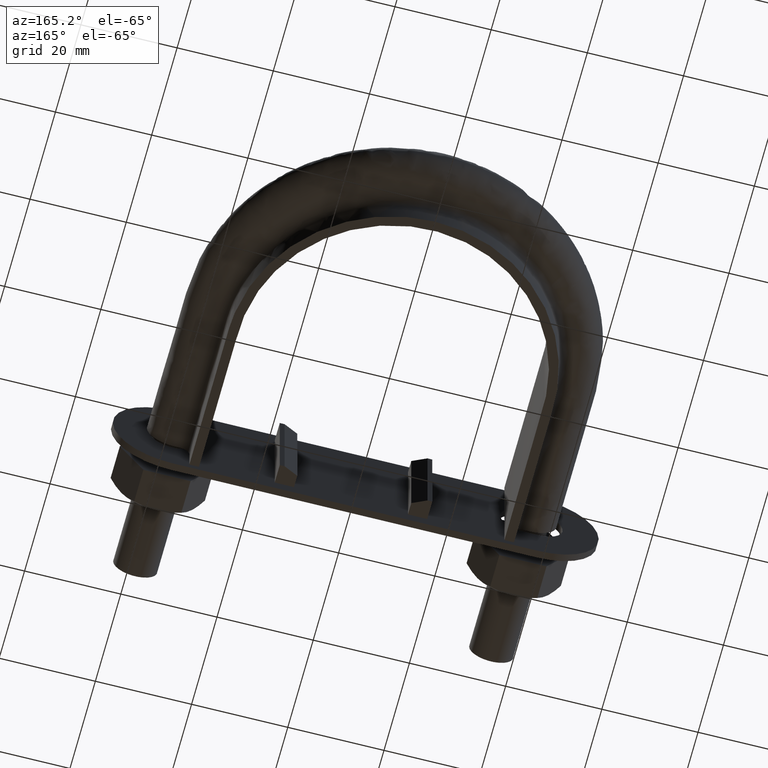
[diagram: clean part render]
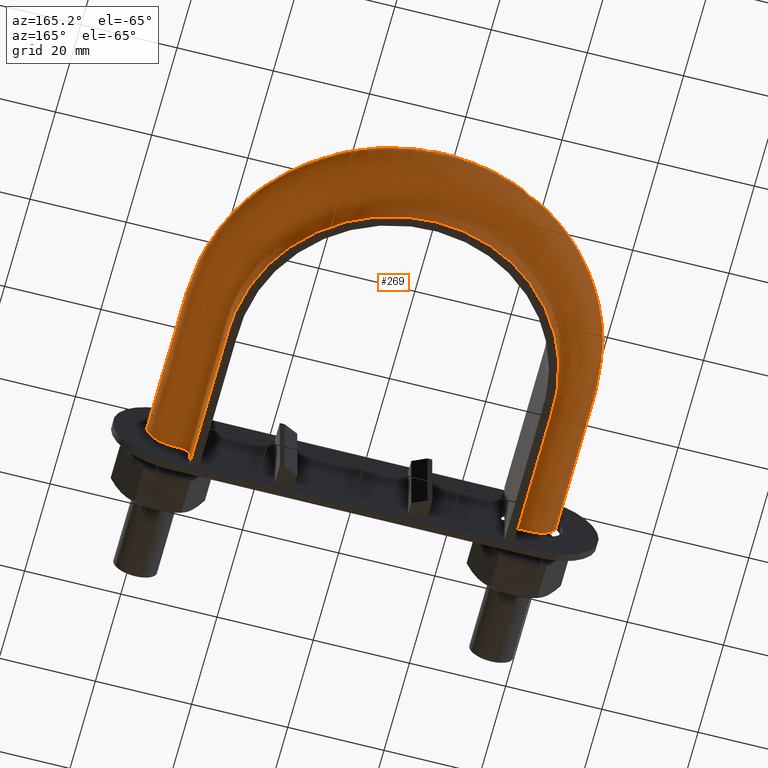
[diagram: same view with one face highlighted and labeled with its STEP entity id]
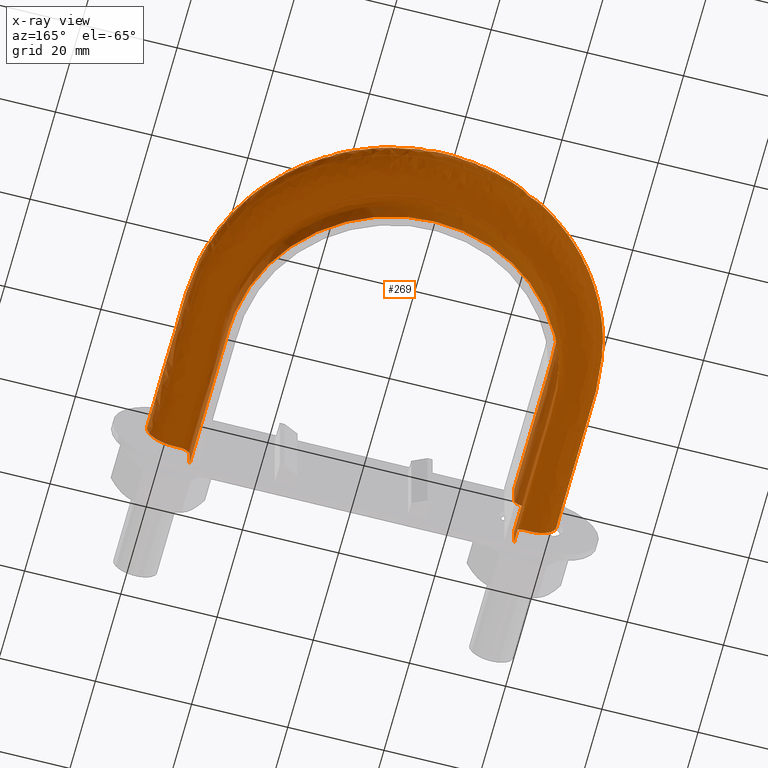
[diagram: x-ray of the same camera — body ghosted, the highlighted face saturated]
A machine part, auxiliary view. The second image highlights one B-rep face of the part: STEP entity #269.
The next image is the same camera in x-ray: the body ghosted, the highlighted face saturated — about 4% of this face is hidden behind the body in this view.
In plain terms, the highlighted face is a freeform B-spline surface patch.
Its self-contained STEP definition (entity closure, byte-faithful):
#269 = ADVANCED_FACE( '', ( #384 ), #385, .F. );
#384 = FACE_OUTER_BOUND( '', #636, .T. );
#385 = B_SPLINE_SURFACE_WITH_KNOTS( '', 3, 3, ( ( #637, #638, #639, #640, #641, #642, #643, #644, #645, #646, #647, #648, #649, #650, #651, #652, #653 ), ( #654, #655, #656, #657, #658, #659, #660, #661, #662, #663, #664, #665, #666, #667, #668, #669, #670 ), ( #671, #672, #673, #674, #675, #676, #677, #678, #679, #680, #681, #682, #683, #684, #685, #686, #687 ), ( #688, #689, #690, #691, #692, #693, #694, #695, #696, #697, #698, #699, #700, #701, #702, #703, #704 ), ( #705, #706, #707, #708, #709, #710, #711, #712, #713, #714, #715, #716, #717, #718, #719, #720, #721 ), ( #722, #723, #724, #725, #726, #727, #728, #729, #730, #731, #732, #733, #734, #735, #736, #737, #738 ), ( #739, #740, #741, #742, #743, #744, #745, #746, #747, #748, #749, #750, #751, #752, #753, #754, #755 ), ( #756, #757, #758, #759, #760, #761, #762, #763, #764, #765, #766, #767, #768, #769, #770, #771, #772 ), ( #773, #774, #775, #776, #777, #778, #779, #780, #781, #782, #783, #784, #785, #786, #787, #788, #789 ), ( #790, #791, #792, #793, #794, #795, #796, #797, #798, #799, #800, #801, #802, #803, #804, #805, #806 ), ( #807, #808, #809, #810, #811, #812, #813, #814, #815, #816, #817, #818, #819, #820, #821, #822, #823 ), ( #824, #825, #826, #827, #828, #829, #830, #831, #832, #833, #834, #835, #836, #837, #838, #839, #840 ), ( #841, #842, #843, #844, #845, #846, #847, #848, #849, #850, #851, #852, #853, #854, #855, #856, #857 ), ( #858, #859, #860, #861, #862, #863, #864, #865, #866, #867, #868, #869, #870, #871, #872, #873, #874 ), ( #875, #876, #877, #878, #879, #880, #881, #882, #883, #884, #885, #886, #887, #888, #889, #890, #891 ), ( #892, #893, #894, #895, #896, #897, #898, #899, #900, #901, #902, #903, #904, #905, #906, #907, #908 ), ( #909, #910, #911, #912, #913, #914, #915, #916, #917, #918, #919, #920, #921, #922, #923, #924, #925 ), ( #926, #927, #928, #929, #930, #931, #932, #933, #934, #935, #936, #937, #938, #939, #940, #941, #942 ), ( #943, #944, #945, #946, #947, #948, #949, #950, #951, #952, #953, #954, #955, #956, #957, #958, #959 ), ( #960, #961, #962, #963, #964, #965, #966, #967, #968, #969, #970, #971, #972, #973, #974, #975, #976 ), ( #977, #978, #979, #980, #981, #982, #983, #984, #985, #986, #987, #988, #989, #990, #991, #992, #993 ), ( #994, #995, #996, #997, #998, #999, #1000, #1001, #1002, #1003, #1004, #1005, #1006, #1007, #1008, #1009, #1010 ), ( #1011, #1012, #1013, #1014, #1015, #1016, #1017, #1018, #1019, #1020, #1021, #1022, #1023, #1024, #1025, #1026, #1027 ), ( #1028, #1029, #1030, #1031, #1032, #1033, #1034, #1035, #1036, #1037, #1038, #1039, #1040, #1041, #1042, #1043, #1044 ), ( #1045, #1046, #1047, #1048, #1049, #1050, #1051, #1052, #1053, #1054, #1055, #1056, #1057, #1058, #1059, #1060, #1061 ), ( #1062, #1063, #1064, #1065, #1066, #1067, #1068, #1069, #1070, #1071, #1072, #1073, #1074, #1075, #1076, #1077, #1078 ), ( #1079, #1080, #1081, #1082, #1083, #1084, #1085, #1086, #1087, #1088, #1089, #1090, #1091, #1092, #1093, #1094, #1095 ), ( #1096, #1097, #1098, #1099, #1100, #1101, #1102, #1103, #1104, #1105, #1106, #1107, #1108, #1109, #1110, #1111, #1112 ), ( #1113, #1114, #1115, #1116, #1117, #1118, #1119, #1120, #1121, #1122, #1123, #1124, #1125, #1126, #1127, #1128, #1129 ), ( #1130, #1131, #1132, #1133, #1134, #1135, #1136, #1137, #1138, #1139, #1140, #1141, #1142, #1143, #1144, #1145, #1146 ), ( #1147, #1148, #1149, #1150, #1151, #1152, #1153, #1154, #1155, #1156, #1157, #1158, #1159, #1160, #1161, #1162, #1163 ) ), .UNSPECIFIED., .F., .F., .F., ( 4, 3, 1, 1, 1, 3, 3, 1, 1, 1, 3, 3, 1, 1, 1, 3, 4 ), ( 4, 3, 1, 1, 1, 1, 1, 1, 1, 3, 4 ), ( 0.105263157894737, 0.157894736842105, 0.210526315789474, 0.263157894736842, 0.315789473684211, 0.368421052631579, 0.421052631578947, 0.473684210526316, 0.526315789473684, 0.578947368421053, 0.631578947368421, 0.684210526315789, 0.736842105263158, 0.789473684210526, 0.842105263157895, 0.894736842105263, 0.947368421052632 ), ( 0.000000000000000, 1.00000000000000, 1.50000000000000, 2.00000000000000, 3.00000000000000, 4.00000000000000, 5.00000000000000, 6.00000000000000, 6.50000000000000, 7.00000000000000, 8.00000000000000 ), .UNSPECIFIED. );
#636 = EDGE_LOOP( '', ( #1574, #1575, #1576, #1577 ) );
#637 = CARTESIAN_POINT( '', ( -33.7500000000000, 28.1500000000000, 12.5000000000000 ) );
#638 = CARTESIAN_POINT( '', ( -33.7500000000000, 39.1833333333334, 12.5000000000000 ) );
#639 = CARTESIAN_POINT( '', ( -33.7500000000000, 50.2166666666667, 12.5000000000000 ) );
#640 = CARTESIAN_POINT( '', ( -33.7500000000000, 61.2500000000000, 12.5000000000000 ) );
#641 = CARTESIAN_POINT( '', ( -33.7500000000000, 64.1871878666593, 12.5000000000000 ) );
#642 = CARTESIAN_POINT( '', ( -32.9599759745505, 70.0846679582192, 12.5000000000000 ) );
#643 = CARTESIAN_POINT( '', ( -28.4402068792077, 81.0673801551942, 12.5000000000000 ) );
#644 = CARTESIAN_POINT( '', ( -17.6636188802502, 91.8452388121563, 12.5000000000000 ) );
#645 = CARTESIAN_POINT( '', ( 2.91741621508519E-014, 96.5773805939218, 12.5000000000000 ) );
#646 = CARTESIAN_POINT( '', ( 17.6636188802502, 91.8452388121563, 12.5000000000000 ) );
#647 = CARTESIAN_POINT( '', ( 28.4402068792078, 81.0673801551942, 12.5000000000000 ) );
#648 = CARTESIAN_POINT( '', ( 32.9599759745505, 70.0846679582191, 12.5000000000000 ) );
#649 = CARTESIAN_POINT( '', ( 33.7500000000000, 64.1871878666593, 12.5000000000000 ) );
#650 = CARTESIAN_POINT( '', ( 33.7500000000000, 61.2500000000000, 12.5000000000000 ) );
#651 = CARTESIAN_POINT( '', ( 33.7500000000000, 50.2166666666666, 12.5000000000000 ) );
#652 = CARTESIAN_POINT( '', ( 33.7500000000000, 39.1833333333333, 12.5000000000000 ) );
#653 = CARTESIAN_POINT( '', ( 33.7500000000000, 28.1500000000000, 12.5000000000000 ) );
#654 = CARTESIAN_POINT( '', ( -33.7500000000000, 28.1500000000000, 10.8666666666667 ) );
#655 = CARTESIAN_POINT( '', ( -33.7500000000000, 39.1833333333333, 10.8666666666667 ) );
#656 = CARTESIAN_POINT( '', ( -33.7500000000000, 50.2166666666667, 10.8666666666667 ) );
#657 = CARTESIAN_POINT( '', ( -33.7500000000000, 61.2500000000000, 10.8666666666667 ) );
#658 = CARTESIAN_POINT( '', ( -33.7500000000000, 64.1871878666593, 10.8666666666667 ) );
#659 = CARTESIAN_POINT( '', ( -32.9599759745505, 70.0846679582192, 10.8666666666667 ) );
#660 = CARTESIAN_POINT( '', ( -28.4402068792077, 81.0673801551942, 10.8666666666667 ) );
#661 = CARTESIAN_POINT( '', ( -17.6636188802502, 91.8452388121563, 10.8666666666667 ) );
#662 = CARTESIAN_POINT( '', ( 2.48373534609099E-014, 96.5773805939218, 10.8666666666667 ) );
#663 = CARTESIAN_POINT( '', ( 17.6636188802502, 91.8452388121563, 10.8666666666667 ) );
#664 = CARTESIAN_POINT( '', ( 28.4402068792077, 81.0673801551942, 10.8666666666667 ) );
#665 = CARTESIAN_POINT( '', ( 32.9599759745505, 70.0846679582191, 10.8666666666667 ) );
#666 = CARTESIAN_POINT( '', ( 33.7500000000000, 64.1871878666593, 10.8666666666667 ) );
#667 = CARTESIAN_POINT( '', ( 33.7500000000000, 61.2500000000000, 10.8666666666667 ) );
#668 = CARTESIAN_POINT( '', ( 33.7500000000000, 50.2166666666666, 10.8666666666667 ) );
#669 = CARTESIAN_POINT( '', ( 33.7500000000000, 39.1833333333333, 10.8666666666667 ) );
#670 = CARTESIAN_POINT( '', ( 33.7500000000000, 28.1500000000000, 10.8666666666667 ) );
#671 = CARTESIAN_POINT( '', ( -33.7500000000000, 28.1500000000000, 9.23333333333332 ) );
#672 = CARTESIAN_POINT( '', ( -33.7500000000000, 39.1833333333333, 9.23333333333332 ) );
#673 = CARTESIAN_POINT( '', ( -33.7500000000000, 50.2166666666667, 9.23333333333332 ) );
#674 = CARTESIAN_POINT( '', ( -33.7500000000000, 61.2500000000000, 9.23333333333332 ) );
#675 = CARTESIAN_POINT( '', ( -33.7500000000000, 64.1871878666593, 9.23333333333332 ) );
#676 = CARTESIAN_POINT( '', ( -32.9599759745505, 70.0846679582192, 9.23333333333332 ) );
#677 = CARTESIAN_POINT( '', ( -28.4402068792077, 81.0673801551942, 9.23333333333333 ) );
#678 = CARTESIAN_POINT( '', ( -17.6636188802502, 91.8452388121563, 9.23333333333332 ) );
#679 = CARTESIAN_POINT( '', ( 2.05005447709679E-014, 96.5773805939219, 9.23333333333332 ) );
#680 = CARTESIAN_POINT( '', ( 17.6636188802502, 91.8452388121563, 9.23333333333332 ) );
#681 = CARTESIAN_POINT( '', ( 28.4402068792077, 81.0673801551942, 9.23333333333333 ) );
#682 = CARTESIAN_POINT( '', ( 32.9599759745505, 70.0846679582191, 9.23333333333332 ) );
#683 = CARTESIAN_POINT( '', ( 33.7500000000000, 64.1871878666593, 9.23333333333332 ) );
#684 = CARTESIAN_POINT( '', ( 33.7500000000000, 61.2500000000000, 9.23333333333332 ) );
#685 = CARTESIAN_POINT( '', ( 33.7500000000000, 50.2166666666666, 9.23333333333332 ) );
#686 = CARTESIAN_POINT( '', ( 33.7500000000000, 39.1833333333333, 9.23333333333332 ) );
#687 = CARTESIAN_POINT( '', ( 33.7500000000000, 28.1500000000000, 9.23333333333332 ) );
#688 = CARTESIAN_POINT( '', ( -33.7500000000000, 28.1500000000000, 7.59999999999998 ) );
#689 = CARTESIAN_POINT( '', ( -33.7500000000000, 39.1833333333333, 7.59999999999998 ) );
#690 = CARTESIAN_POINT( '', ( -33.7500000000000, 50.2166666666667, 7.59999999999998 ) );
#691 = CARTESIAN_POINT( '', ( -33.7500000000000, 61.2500000000000, 7.59999999999998 ) );
#692 = CARTESIAN_POINT( '', ( -33.7500000000000, 64.1871878666593, 7.59999999999998 ) );
#693 = CARTESIAN_POINT( '', ( -32.9599759745505, 70.0846679582191, 7.59999999999998 ) );
#694 = CARTESIAN_POINT( '', ( -28.4402068792077, 81.0673801551942, 7.59999999999999 ) );
#695 = CARTESIAN_POINT( '', ( -17.6636188802502, 91.8452388121563, 7.59999999999998 ) );
#696 = CARTESIAN_POINT( '', ( 1.87658212949911E-014, 96.5773805939218, 7.59999999999999 ) );
#697 = CARTESIAN_POINT( '', ( 17.6636188802502, 91.8452388121563, 7.59999999999998 ) );
#698 = CARTESIAN_POINT( '', ( 28.4402068792077, 81.0673801551942, 7.59999999999999 ) );
#699 = CARTESIAN_POINT( '', ( 32.9599759745505, 70.0846679582191, 7.59999999999998 ) );
#700 = CARTESIAN_POINT( '', ( 33.7500000000000, 64.1871878666593, 7.59999999999998 ) );
#701 = CARTESIAN_POINT( '', ( 33.7500000000000, 61.2500000000000, 7.59999999999998 ) );
#702 = CARTESIAN_POINT( '', ( 33.7500000000000, 50.2166666666666, 7.59999999999998 ) );
#703 = CARTESIAN_POINT( '', ( 33.7500000000000, 39.1833333333333, 7.59999999999998 ) );
#704 = CARTESIAN_POINT( '', ( 33.7500000000000, 28.1500000000000, 7.59999999999998 ) );
#705 = CARTESIAN_POINT( '', ( -33.7500000000000, 28.1500000000000, 7.33823584172332 ) );
#706 = CARTESIAN_POINT( '', ( -33.7500000000000, 39.1833333333333, 7.33823584172332 ) );
#707 = CARTESIAN_POINT( '', ( -33.7500000000000, 50.2166666666667, 7.33823584172332 ) );
#708 = CARTESIAN_POINT( '', ( -33.7500000000000, 61.2500000000000, 7.33823584172332 ) );
#709 = CARTESIAN_POINT( '', ( -33.7500000000000, 64.1871878666593, 7.33823584172332 ) );
#710 = CARTESIAN_POINT( '', ( -32.9599759745505, 70.0846679582191, 7.33823584172331 ) );
#711 = CARTESIAN_POINT( '', ( -28.4402068792077, 81.0673801551942, 7.33823584172332 ) );
#712 = CARTESIAN_POINT( '', ( -17.6636188802502, 91.8452388121563, 7.33823584172331 ) );
#713 = CARTESIAN_POINT( '', ( 1.96331830329795E-014, 96.5773805939218, 7.33823584172332 ) );
#714 = CARTESIAN_POINT( '', ( 17.6636188802502, 91.8452388121563, 7.33823584172331 ) );
#715 = CARTESIAN_POINT( '', ( 28.4402068792077, 81.0673801551942, 7.33823584172332 ) );
#716 = CARTESIAN_POINT( '', ( 32.9599759745505, 70.0846679582191, 7.33823584172331 ) );
#717 = CARTESIAN_POINT( '', ( 33.7500000000000, 64.1871878666593, 7.33823584172332 ) );
#718 = CARTESIAN_POINT( '', ( 33.7500000000000, 61.2500000000000, 7.33823584172332 ) );
#719 = CARTESIAN_POINT( '', ( 33.7500000000000, 50.2166666666666, 7.33823584172332 ) );
#720 = CARTESIAN_POINT( '', ( 33.7500000000000, 39.1833333333333, 7.33823584172332 ) );
#721 = CARTESIAN_POINT( '', ( 33.7500000000000, 28.1500000000000, 7.33823584172332 ) );
#722 = CARTESIAN_POINT( '', ( -33.8541362568359, 28.1500000000000, 6.81470752516999 ) );
#723 = CARTESIAN_POINT( '', ( -33.8541362568359, 39.1833333333333, 6.81470752516999 ) );
#724 = CARTESIAN_POINT( '', ( -33.8541362568359, 50.2166666666667, 6.81470752516999 ) );
#725 = CARTESIAN_POINT( '', ( -33.8541362568359, 61.2500000000000, 6.81470752516999 ) );
#726 = CARTESIAN_POINT( '', ( -33.8541362568359, 64.1964889419666, 6.81470752516999 ) );
#727 = CARTESIAN_POINT( '', ( -33.0617163629081, 70.1118308760230, 6.81470752516999 ) );
#728 = CARTESIAN_POINT( '', ( -28.5279356231946, 81.1285829879987, 6.81470752517000 ) );
#729 = CARTESIAN_POINT( '', ( -17.7181279007037, 91.9396206541654, 6.81470752516999 ) );
#730 = CARTESIAN_POINT( '', ( 1.87791711530883E-014, 96.6863940581712, 6.81470752516999 ) );
#731 = CARTESIAN_POINT( '', ( 17.7181279007038, 91.9396206541654, 6.81470752516999 ) );
#732 = CARTESIAN_POINT( '', ( 28.5279356231946, 81.1285829879987, 6.81470752517000 ) );
#733 = CARTESIAN_POINT( '', ( 33.0617163629082, 70.1118308760230, 6.81470752516999 ) );
#734 = CARTESIAN_POINT( '', ( 33.8541362568359, 64.1964889419666, 6.81470752516999 ) );
#735 = CARTESIAN_POINT( '', ( 33.8541362568359, 61.2500000000000, 6.81470752516999 ) );
#736 = CARTESIAN_POINT( '', ( 33.8541362568359, 50.2166666666666, 6.81470752516999 ) );
#737 = CARTESIAN_POINT( '', ( 33.8541362568359, 39.1833333333333, 6.81470752516999 ) );
#738 = CARTESIAN_POINT( '', ( 33.8541362568359, 28.1500000000000, 6.81470752516999 ) );
#739 = CARTESIAN_POINT( '', ( -34.2989687109389, 28.1500000000000, 6.14896871093886 ) );
#740 = CARTESIAN_POINT( '', ( -34.2989687109389, 39.1833333333333, 6.14896871093886 ) );
#741 = CARTESIAN_POINT( '', ( -34.2989687109389, 50.2166666666667, 6.14896871093886 ) );
#742 = CARTESIAN_POINT( '', ( -34.2989687109389, 61.2500000000000, 6.14896871093886 ) );
#743 = CARTESIAN_POINT( '', ( -34.2989687109389, 64.2362197742480, 6.14896871093886 ) );
#744 = CARTESIAN_POINT( '', ( -33.4963145327448, 70.2278610441357, 6.14896871093886 ) );
#745 = CARTESIAN_POINT( '', ( -28.9026811121221, 81.3900193708850, 6.14896871093886 ) );
#746 = CARTESIAN_POINT( '', ( -17.9509707363869, 92.3427857733981, 6.14896871093886 ) );
#747 = CARTESIAN_POINT( '', ( 1.88361969222078E-014, 97.1520601797093, 6.14896871093886 ) );
#748 = CARTESIAN_POINT( '', ( 17.9509707363869, 92.3427857733981, 6.14896871093885 ) );
#749 = CARTESIAN_POINT( '', ( 28.9026811121221, 81.3900193708850, 6.14896871093886 ) );
#750 = CARTESIAN_POINT( '', ( 33.4963145327449, 70.2278610441357, 6.14896871093885 ) );
#751 = CARTESIAN_POINT( '', ( 34.2989687109389, 64.2362197742480, 6.14896871093886 ) );
#752 = CARTESIAN_POINT( '', ( 34.2989687109389, 61.2500000000000, 6.14896871093886 ) );
#753 = CARTESIAN_POINT( '', ( 34.2989687109389, 50.2166666666666, 6.14896871093886 ) );
#754 = CARTESIAN_POINT( '', ( 34.2989687109389, 39.1833333333333, 6.14896871093886 ) );
#755 = CARTESIAN_POINT( '', ( 34.2989687109389, 28.1500000000000, 6.14896871093886 ) );
#756 = CARTESIAN_POINT( '', ( -34.9647075251700, 28.1500000000000, 5.70413625683589 ) );
#757 = CARTESIAN_POINT( '', ( -34.9647075251700, 39.1833333333333, 5.70413625683589 ) );
#758 = CARTESIAN_POINT( '', ( -34.9647075251700, 50.2166666666667, 5.70413625683589 ) );
#759 = CARTESIAN_POINT( '', ( -34.9647075251700, 61.2500000000000, 5.70413625683589 ) );
#760 = CARTESIAN_POINT( '', ( -34.9647075251700, 64.2956811667957, 5.70413625683589 ) );
#761 = CARTESIAN_POINT( '', ( -34.1467366581663, 70.4015124623762, 5.70413625683589 ) );
#762 = CARTESIAN_POINT( '', ( -29.4635273703839, 81.7812865680829, 5.70413625683589 ) );
#763 = CARTESIAN_POINT( '', ( -18.2994446660656, 92.9461650141474, 5.70413625683589 ) );
#764 = CARTESIAN_POINT( '', ( 1.97889037548810E-014, 97.8489787806813, 5.70413625683589 ) );
#765 = CARTESIAN_POINT( '', ( 18.2994446660656, 92.9461650141474, 5.70413625683589 ) );
#766 = CARTESIAN_POINT( '', ( 29.4635273703840, 81.7812865680829, 5.70413625683589 ) );
#767 = CARTESIAN_POINT( '', ( 34.1467366581663, 70.4015124623762, 5.70413625683589 ) );
#768 = CARTESIAN_POINT( '', ( 34.9647075251700, 64.2956811667957, 5.70413625683589 ) );
#769 = CARTESIAN_POINT( '', ( 34.9647075251700, 61.2500000000000, 5.70413625683589 ) );
#770 = CARTESIAN_POINT( '', ( 34.9647075251700, 50.2166666666666, 5.70413625683589 ) );
#771 = CARTESIAN_POINT( '', ( 34.9647075251700, 39.1833333333333, 5.70413625683589 ) );
#772 = CARTESIAN_POINT( '', ( 34.9647075251700, 28.1500000000000, 5.70413625683589 ) );
#773 = CARTESIAN_POINT( '', ( -35.4882358417234, 28.1500000000000, 5.59999999999998 ) );
#774 = CARTESIAN_POINT( '', ( -35.4882358417233, 39.1833333333333, 5.59999999999998 ) );
#775 = CARTESIAN_POINT( '', ( -35.4882358417233, 50.2166666666667, 5.59999999999998 ) );
#776 = CARTESIAN_POINT( '', ( -35.4882358417233, 61.2500000000000, 5.59999999999998 ) );
#777 = CARTESIAN_POINT( '', ( -35.4882358417233, 64.3424408300075, 5.59999999999998 ) );
#778 = CARTESIAN_POINT( '', ( -34.6582201305010, 70.5380696717730, 5.59999999999998 ) );
#779 = CARTESIAN_POINT( '', ( -29.9045695496238, 82.0889739864711, 5.59999999999999 ) );
#780 = CARTESIAN_POINT( '', ( -18.5734800172688, 93.4206545758196, 5.59999999999998 ) );
#781 = CARTESIAN_POINT( '', ( 2.24581032376724E-014, 98.3970264746752, 5.59999999999998 ) );
#782 = CARTESIAN_POINT( '', ( 18.5734800172688, 93.4206545758196, 5.59999999999998 ) );
#783 = CARTESIAN_POINT( '', ( 29.9045695496238, 82.0889739864711, 5.59999999999999 ) );
#784 = CARTESIAN_POINT( '', ( 34.6582201305010, 70.5380696717730, 5.59999999999998 ) );
#785 = CARTESIAN_POINT( '', ( 35.4882358417234, 64.3424408300075, 5.59999999999998 ) );
#786 = CARTESIAN_POINT( '', ( 35.4882358417234, 61.2500000000000, 5.59999999999998 ) );
#787 = CARTESIAN_POINT( '', ( 35.4882358417234, 50.2166666666666, 5.59999999999998 ) );
#788 = CARTESIAN_POINT( '', ( 35.4882358417234, 39.1833333333333, 5.59999999999998 ) );
#789 = CARTESIAN_POINT( '', ( 35.4882358417234, 28.1500000000000, 5.59999999999998 ) );
#790 = CARTESIAN_POINT( '', ( -35.7500000000000, 28.1500000000000, 5.59999999999998 ) );
#791 = CARTESIAN_POINT( '', ( -35.7500000000000, 39.1833333333333, 5.59999999999998 ) );
#792 = CARTESIAN_POINT( '', ( -35.7500000000000, 50.2166666666667, 5.59999999999998 ) );
#793 = CARTESIAN_POINT( '', ( -35.7500000000000, 61.2500000000000, 5.59999999999998 ) );
#794 = CARTESIAN_POINT( '', ( -35.7500000000000, 64.3658206616134, 5.59999999999998 ) );
#795 = CARTESIAN_POINT( '', ( -34.9139618666683, 70.6063482764714, 5.59999999999998 ) );
#796 = CARTESIAN_POINT( '', ( -30.1250906392437, 82.2428176956652, 5.59999999999999 ) );
#797 = CARTESIAN_POINT( '', ( -18.7104976928704, 93.6578993566557, 5.59999999999998 ) );
#798 = CARTESIAN_POINT( '', ( 1.98895751581204E-014, 98.6710503216721, 5.59999999999998 ) );
#799 = CARTESIAN_POINT( '', ( 18.7104976928704, 93.6578993566557, 5.59999999999998 ) );
#800 = CARTESIAN_POINT( '', ( 30.1250906392437, 82.2428176956652, 5.59999999999999 ) );
#801 = CARTESIAN_POINT( '', ( 34.9139618666683, 70.6063482764714, 5.59999999999998 ) );
#802 = CARTESIAN_POINT( '', ( 35.7500000000000, 64.3658206616134, 5.59999999999998 ) );
#803 = CARTESIAN_POINT( '', ( 35.7500000000000, 61.2500000000000, 5.59999999999998 ) );
#804 = CARTESIAN_POINT( '', ( 35.7500000000000, 50.2166666666666, 5.59999999999998 ) );
#805 = CARTESIAN_POINT( '', ( 35.7500000000000, 39.1833333333333, 5.59999999999998 ) );
#806 = CARTESIAN_POINT( '', ( 35.7500000000000, 28.1500000000000, 5.59999999999998 ) );
#807 = CARTESIAN_POINT( '', ( -36.1666666666667, 28.1500000000000, 5.60000000000000 ) );
#808 = CARTESIAN_POINT( '', ( -36.1666666666667, 39.1833333333333, 5.60000000000000 ) );
#809 = CARTESIAN_POINT( '', ( -36.1666666666667, 50.2166666666667, 5.60000000000000 ) );
#810 = CARTESIAN_POINT( '', ( -36.1666666666667, 61.2500000000000, 5.60000000000000 ) );
#811 = CARTESIAN_POINT( '', ( -36.1666666666667, 64.4030358272288, 5.60000000000000 ) );
#812 = CARTESIAN_POINT( '', ( -35.3210422608595, 70.7150316761073, 5.60000000000000 ) );
#813 = CARTESIAN_POINT( '', ( -30.4761080892512, 82.4877005165967, 5.60000000000000 ) );
#814 = CARTESIAN_POINT( '', ( -18.9285974454996, 94.0355369700931, 5.60000000000000 ) );
#815 = CARTESIAN_POINT( '', ( 2.08103519221798E-014, 99.1072315149534, 5.60000000000000 ) );
#816 = CARTESIAN_POINT( '', ( 18.9285974454996, 94.0355369700931, 5.60000000000000 ) );
#817 = CARTESIAN_POINT( '', ( 30.4761080892512, 82.4877005165967, 5.60000000000000 ) );
#818 = CARTESIAN_POINT( '', ( 35.3210422608596, 70.7150316761073, 5.59999999999999 ) );
#819 = CARTESIAN_POINT( '', ( 36.1666666666667, 64.4030358272288, 5.60000000000000 ) );
#820 = CARTESIAN_POINT( '', ( 36.1666666666667, 61.2500000000000, 5.60000000000000 ) );
#821 = CARTESIAN_POINT( '', ( 36.1666666666667, 50.2166666666666, 5.60000000000000 ) );
#822 = CARTESIAN_POINT( '', ( 36.1666666666667, 39.1833333333333, 5.60000000000000 ) );
#823 = CARTESIAN_POINT( '', ( 36.1666666666667, 28.1500000000000, 5.60000000000000 ) );
#824 = CARTESIAN_POINT( '', ( -36.5833333333333, 28.1500000000000, 5.60000000000000 ) );
#825 = CARTESIAN_POINT( '', ( -36.5833333333333, 39.1833333333333, 5.60000000000000 ) );
#826 = CARTESIAN_POINT( '', ( -36.5833333333333, 50.2166666666667, 5.60000000000000 ) );
#827 = CARTESIAN_POINT( '', ( -36.5833333333333, 61.2500000000000, 5.60000000000000 ) );
#828 = CARTESIAN_POINT( '', ( -36.5833333333333, 64.4402509928442, 5.60000000000000 ) );
#829 = CARTESIAN_POINT( '', ( -35.7281226550507, 70.8237150757431, 5.60000000000000 ) );
#830 = CARTESIAN_POINT( '', ( -30.8271255392587, 82.7325833375282, 5.60000000000000 ) );
#831 = CARTESIAN_POINT( '', ( -19.1466971981288, 94.4131745835304, 5.60000000000000 ) );
#832 = CARTESIAN_POINT( '', ( 1.99964052102624E-014, 99.5434127082348, 5.60000000000000 ) );
#833 = CARTESIAN_POINT( '', ( 19.1466971981289, 94.4131745835304, 5.60000000000000 ) );
#834 = CARTESIAN_POINT( '', ( 30.8271255392587, 82.7325833375282, 5.60000000000000 ) );
#835 = CARTESIAN_POINT( '', ( 35.7281226550508, 70.8237150757431, 5.59999999999999 ) );
#836 = CARTESIAN_POINT( '', ( 36.5833333333334, 64.4402509928442, 5.60000000000000 ) );
#837 = CARTESIAN_POINT( '', ( 36.5833333333334, 61.2500000000000, 5.60000000000000 ) );
#838 = CARTESIAN_POINT( '', ( 36.5833333333334, 50.2166666666666, 5.60000000000000 ) );
#839 = CARTESIAN_POINT( '', ( 36.5833333333334, 39.1833333333333, 5.60000000000000 ) );
#840 = CARTESIAN_POINT( '', ( 36.5833333333333, 28.1500000000000, 5.60000000000000 ) );
#841 = CARTESIAN_POINT( '', ( -37.0000000000000, 28.1500000000000, 5.60000000000000 ) );
#842 = CARTESIAN_POINT( '', ( -37.0000000000000, 39.1833333333333, 5.60000000000000 ) );
#843 = CARTESIAN_POINT( '', ( -37.0000000000000, 50.2166666666667, 5.60000000000000 ) );
#844 = CARTESIAN_POINT( '', ( -37.0000000000000, 61.2500000000000, 5.60000000000000 ) );
#845 = CARTESIAN_POINT( '', ( -37.0000000000000, 64.4774661584597, 5.60000000000000 ) );
#846 = CARTESIAN_POINT( '', ( -36.1352030492419, 70.9323984753790, 5.60000000000000 ) );
#847 = CARTESIAN_POINT( '', ( -31.1781429892662, 82.9774661584596, 5.60000000000000 ) );
#848 = CARTESIAN_POINT( '', ( -19.3647969507580, 94.7908121969678, 5.60000000000000 ) );
#849 = CARTESIAN_POINT( '', ( 1.74477350223682E-014, 99.9795939015161, 5.60000000000000 ) );
#850 = CARTESIAN_POINT( '', ( 19.3647969507581, 94.7908121969678, 5.60000000000000 ) );
#851 = CARTESIAN_POINT( '', ( 31.1781429892662, 82.9774661584596, 5.60000000000000 ) );
#852 = CARTESIAN_POINT( '', ( 36.1352030492420, 70.9323984753790, 5.59999999999999 ) );
#853 = CARTESIAN_POINT( '', ( 37.0000000000000, 64.4774661584597, 5.60000000000000 ) );
#854 = CARTESIAN_POINT( '', ( 37.0000000000000, 61.2500000000000, 5.60000000000000 ) );
#855 = CARTESIAN_POINT( '', ( 37.0000000000000, 50.2166666666666, 5.60000000000000 ) );
#856 = CARTESIAN_POINT( '', ( 37.0000000000000, 39.1833333333333, 5.60000000000000 ) );
#857 = CARTESIAN_POINT( '', ( 37.0000000000000, 28.1500000000000, 5.60000000000000 ) );
#858 = CARTESIAN_POINT( '', ( -38.4627416997970, 28.1500000000000, 5.60000000000000 ) );
#859 = CARTESIAN_POINT( '', ( -38.4627416997969, 39.1833333333333, 5.60000000000000 ) );
#860 = CARTESIAN_POINT( '', ( -38.4627416997969, 50.2166666666667, 5.60000000000000 ) );
#861 = CARTESIAN_POINT( '', ( -38.4627416997969, 61.2500000000000, 5.60000000000000 ) );
#862 = CARTESIAN_POINT( '', ( -38.4627416997969, 64.6081129775250, 5.60000000000000 ) );
#863 = CARTESIAN_POINT( '', ( -37.5642913718498, 71.3139402531145, 5.59999999999999 ) );
#864 = CARTESIAN_POINT( '', ( -32.4104178568238, 83.8371469114365, 5.60000000000000 ) );
#865 = CARTESIAN_POINT( '', ( -20.1304535976848, 96.1165392799758, 5.59999999999999 ) );
#866 = CARTESIAN_POINT( '', ( 1.85026144868281E-014, 101.510842909708, 5.60000000000000 ) );
#867 = CARTESIAN_POINT( '', ( 20.1304535976848, 96.1165392799757, 5.59999999999999 ) );
#868 = CARTESIAN_POINT( '', ( 32.4104178568238, 83.8371469114365, 5.60000000000000 ) );
#869 = CARTESIAN_POINT( '', ( 37.5642913718498, 71.3139402531144, 5.59999999999999 ) );
#870 = CARTESIAN_POINT( '', ( 38.4627416997970, 64.6081129775250, 5.60000000000000 ) );
#871 = CARTESIAN_POINT( '', ( 38.4627416997970, 61.2500000000000, 5.60000000000000 ) );
#872 = CARTESIAN_POINT( '', ( 38.4627416997970, 50.2166666666666, 5.60000000000000 ) );
#873 = CARTESIAN_POINT( '', ( 38.4627416997970, 39.1833333333333, 5.60000000000000 ) );
#874 = CARTESIAN_POINT( '', ( 38.4627416997970, 28.1500000000000, 5.60000000000000 ) );
#875 = CARTESIAN_POINT( '', ( -41.3882250993909, 28.1500000000000, 4.38822509939085 ) );
#876 = CARTESIAN_POINT( '', ( -41.3882250993908, 39.1833333333333, 4.38822509939085 ) );
#877 = CARTESIAN_POINT( '', ( -41.3882250993908, 50.2166666666667, 4.38822509939085 ) );
#878 = CARTESIAN_POINT( '', ( -41.3882250993908, 61.2500000000000, 4.38822509939085 ) );
#879 = CARTESIAN_POINT( '', ( -41.3882250993908, 64.8694066156556, 4.38822509939085 ) );
#880 = CARTESIAN_POINT( '', ( -40.4224680170654, 72.0770238085853, 4.38822509939085 ) );
#881 = CARTESIAN_POINT( '', ( -34.8749675919391, 85.5565084173903, 4.38822509939085 ) );
#882 = CARTESIAN_POINT( '', ( -21.6617668915383, 98.7679934459917, 4.38822509939085 ) );
#883 = CARTESIAN_POINT( '', ( 1.88776499397712E-014, 104.573340926090, 4.38822509939085 ) );
#884 = CARTESIAN_POINT( '', ( 21.6617668915383, 98.7679934459917, 4.38822509939085 ) );
#885 = CARTESIAN_POINT( '', ( 34.8749675919392, 85.5565084173903, 4.38822509939085 ) );
#886 = CARTESIAN_POINT( '', ( 40.4224680170655, 72.0770238085853, 4.38822509939085 ) );
#887 = CARTESIAN_POINT( '', ( 41.3882250993909, 64.8694066156556, 4.38822509939085 ) );
#888 = CARTESIAN_POINT( '', ( 41.3882250993909, 61.2500000000000, 4.38822509939085 ) );
#889 = CARTESIAN_POINT( '', ( 41.3882250993909, 50.2166666666666, 4.38822509939085 ) );
#890 = CARTESIAN_POINT( '', ( 41.3882250993909, 39.1833333333333, 4.38822509939085 ) );
#891 = CARTESIAN_POINT( '', ( 41.3882250993909, 28.1500000000000, 4.38822509939085 ) );
#892 = CARTESIAN_POINT( '', ( -43.2058874503046, 28.1500000000000, -1.07693261045861E-015 ) );
#893 = CARTESIAN_POINT( '', ( -43.2058874503046, 39.1833333333333, -1.07693261045861E-015 ) );
#894 = CARTESIAN_POINT( '', ( -43.2058874503046, 50.2166666666667, -1.07693261045861E-015 ) );
#895 = CARTESIAN_POINT( '', ( -43.2058874503046, 61.2500000000000, -1.07693261045861E-015 ) );
#896 = CARTESIAN_POINT( '', ( -43.2058874503046, 65.0317536686688, -1.07693261045861E-015 ) );
#897 = CARTESIAN_POINT( '', ( -42.1983113122250, 72.5511431454352, -1.07693261045861E-015 ) );
#898 = CARTESIAN_POINT( '', ( -36.4062424800808, 86.6247826989728, -1.07693261045861E-015 ) );
#899 = CARTESIAN_POINT( '', ( -22.6132029933728, 100.415395859353, -1.07693261045861E-015 ) );
#900 = CARTESIAN_POINT( '', ( 2.08453905722177E-014, 106.476133245780, -1.07693261045861E-015 ) );
#901 = CARTESIAN_POINT( '', ( 22.6132029933728, 100.415395859353, -1.07693261045861E-015 ) );
#902 = CARTESIAN_POINT( '', ( 36.4062424800808, 86.6247826989727, -1.07693261045861E-015 ) );
#903 = CARTESIAN_POINT( '', ( 42.1983113122250, 72.5511431454352, -1.07693261045861E-015 ) );
#904 = CARTESIAN_POINT( '', ( 43.2058874503046, 65.0317536686688, -1.07693261045861E-015 ) );
#905 = CARTESIAN_POINT( '', ( 43.2058874503046, 61.2500000000000, -1.07693261045861E-015 ) );
#906 = CARTESIAN_POINT( '', ( 43.2058874503046, 50.2166666666666, -1.07693261045861E-015 ) );
#907 = CARTESIAN_POINT( '', ( 43.2058874503046, 39.1833333333333, -1.07693261045861E-015 ) );
#908 = CARTESIAN_POINT( '', ( 43.2058874503046, 28.1500000000000, -1.07693261045861E-015 ) );
#909 = CARTESIAN_POINT( '', ( -41.3882250993909, 28.1500000000000, -4.38822509939086 ) );
#910 = CARTESIAN_POINT( '', ( -41.3882250993908, 39.1833333333333, -4.38822509939086 ) );
#911 = CARTESIAN_POINT( '', ( -41.3882250993908, 50.2166666666667, -4.38822509939086 ) );
#912 = CARTESIAN_POINT( '', ( -41.3882250993908, 61.2500000000000, -4.38822509939086 ) );
#913 = CARTESIAN_POINT( '', ( -41.3882250993908, 64.8694066156556, -4.38822509939086 ) );
#914 = CARTESIAN_POINT( '', ( -40.4224680170654, 72.0770238085853, -4.38822509939086 ) );
#915 = CARTESIAN_POINT( '', ( -34.8749675919391, 85.5565084173903, -4.38822509939086 ) );
#916 = CARTESIAN_POINT( '', ( -21.6617668915383, 98.7679934459917, -4.38822509939086 ) );
#917 = CARTESIAN_POINT( '', ( 1.88776499397712E-014, 104.573340926090, -4.38822509939086 ) );
#918 = CARTESIAN_POINT( '', ( 21.6617668915383, 98.7679934459917, -4.38822509939086 ) );
#919 = CARTESIAN_POINT( '', ( 34.8749675919392, 85.5565084173903, -4.38822509939086 ) );
#920 = CARTESIAN_POINT( '', ( 40.4224680170655, 72.0770238085853, -4.38822509939086 ) );
#921 = CARTESIAN_POINT( '', ( 41.3882250993909, 64.8694066156556, -4.38822509939086 ) );
#922 = CARTESIAN_POINT( '', ( 41.3882250993909, 61.2500000000000, -4.38822509939086 ) );
#923 = CARTESIAN_POINT( '', ( 41.3882250993909, 50.2166666666666, -4.38822509939086 ) );
#924 = CARTESIAN_POINT( '', ( 41.3882250993909, 39.1833333333333, -4.38822509939086 ) );
#925 = CARTESIAN_POINT( '', ( 41.3882250993909, 28.1500000000000, -4.38822509939086 ) );
#926 = CARTESIAN_POINT( '', ( -38.4627416997970, 28.1500000000000, -5.60000000000000 ) );
#927 = CARTESIAN_POINT( '', ( -38.4627416997969, 39.1833333333333, -5.60000000000000 ) );
#928 = CARTESIAN_POINT( '', ( -38.4627416997969, 50.2166666666667, -5.60000000000000 ) );
#929 = CARTESIAN_POINT( '', ( -38.4627416997969, 61.2500000000000, -5.60000000000000 ) );
#930 = CARTESIAN_POINT( '', ( -38.4627416997969, 64.6081129775250, -5.60000000000000 ) );
#931 = CARTESIAN_POINT( '', ( -37.5642913718498, 71.3139402531145, -5.60000000000000 ) );
#932 = CARTESIAN_POINT( '', ( -32.4104178568238, 83.8371469114365, -5.60000000000001 ) );
#933 = CARTESIAN_POINT( '', ( -20.1304535976848, 96.1165392799758, -5.60000000000000 ) );
#934 = CARTESIAN_POINT( '', ( 1.85026144868281E-014, 101.510842909708, -5.60000000000000 ) );
#935 = CARTESIAN_POINT( '', ( 20.1304535976848, 96.1165392799757, -5.60000000000000 ) );
#936 = CARTESIAN_POINT( '', ( 32.4104178568238, 83.8371469114365, -5.60000000000001 ) );
#937 = CARTESIAN_POINT( '', ( 37.5642913718498, 71.3139402531144, -5.60000000000000 ) );
#938 = CARTESIAN_POINT( '', ( 38.4627416997970, 64.6081129775250, -5.60000000000000 ) );
#939 = CARTESIAN_POINT( '', ( 38.4627416997970, 61.2500000000000, -5.60000000000000 ) );
#940 = CARTESIAN_POINT( '', ( 38.4627416997970, 50.2166666666666, -5.60000000000000 ) );
#941 = CARTESIAN_POINT( '', ( 38.4627416997970, 39.1833333333333, -5.60000000000000 ) );
#942 = CARTESIAN_POINT( '', ( 38.4627416997970, 28.1500000000000, -5.60000000000000 ) );
#943 = CARTESIAN_POINT( '', ( -37.0000000000000, 28.1500000000000, -5.60000000000000 ) );
#944 = CARTESIAN_POINT( '', ( -37.0000000000000, 39.1833333333333, -5.60000000000000 ) );
#945 = CARTESIAN_POINT( '', ( -37.0000000000000, 50.2166666666667, -5.60000000000000 ) );
#946 = CARTESIAN_POINT( '', ( -37.0000000000000, 61.2500000000000, -5.60000000000000 ) );
#947 = CARTESIAN_POINT( '', ( -37.0000000000000, 64.4774661584597, -5.60000000000000 ) );
#948 = CARTESIAN_POINT( '', ( -36.1352030492419, 70.9323984753790, -5.60000000000000 ) );
#949 = CARTESIAN_POINT( '', ( -31.1781429892662, 82.9774661584596, -5.60000000000001 ) );
#950 = CARTESIAN_POINT( '', ( -19.3647969507580, 94.7908121969678, -5.60000000000000 ) );
#951 = CARTESIAN_POINT( '', ( 2.00498202363334E-014, 99.9795939015161, -5.60000000000000 ) );
#952 = CARTESIAN_POINT( '', ( 19.3647969507581, 94.7908121969678, -5.60000000000000 ) );
#953 = CARTESIAN_POINT( '', ( 31.1781429892662, 82.9774661584596, -5.60000000000001 ) );
#954 = CARTESIAN_POINT( '', ( 36.1352030492420, 70.9323984753790, -5.60000000000000 ) );
#955 = CARTESIAN_POINT( '', ( 37.0000000000000, 64.4774661584597, -5.60000000000000 ) );
#956 = CARTESIAN_POINT( '', ( 37.0000000000000, 61.2500000000000, -5.60000000000000 ) );
#957 = CARTESIAN_POINT( '', ( 37.0000000000000, 50.2166666666666, -5.60000000000000 ) );
#958 = CARTESIAN_POINT( '', ( 37.0000000000000, 39.1833333333333, -5.60000000000000 ) );
#959 = CARTESIAN_POINT( '', ( 37.0000000000000, 28.1500000000000, -5.60000000000000 ) );
#960 = CARTESIAN_POINT( '', ( -36.5833333333334, 28.1500000000000, -5.60000000000000 ) );
#961 = CARTESIAN_POINT( '', ( -36.5833333333333, 39.1833333333333, -5.60000000000000 ) );
#962 = CARTESIAN_POINT( '', ( -36.5833333333333, 50.2166666666667, -5.60000000000000 ) );
#963 = CARTESIAN_POINT( '', ( -36.5833333333333, 61.2500000000000, -5.60000000000000 ) );
#964 = CARTESIAN_POINT( '', ( -36.5833333333333, 64.4402509928442, -5.60000000000000 ) );
#965 = CARTESIAN_POINT( '', ( -35.7281226550507, 70.8237150757431, -5.60000000000000 ) );
#966 = CARTESIAN_POINT( '', ( -30.8271255392587, 82.7325833375282, -5.60000000000001 ) );
#967 = CARTESIAN_POINT( '', ( -19.1466971981288, 94.4131745835304, -5.60000000000000 ) );
#968 = CARTESIAN_POINT( '', ( 1.99964052102624E-014, 99.5434127082348, -5.60000000000000 ) );
#969 = CARTESIAN_POINT( '', ( 19.1466971981289, 94.4131745835304, -5.60000000000000 ) );
#970 = CARTESIAN_POINT( '', ( 30.8271255392587, 82.7325833375282, -5.60000000000001 ) );
#971 = CARTESIAN_POINT( '', ( 35.7281226550508, 70.8237150757432, -5.60000000000000 ) );
#972 = CARTESIAN_POINT( '', ( 36.5833333333334, 64.4402509928442, -5.60000000000000 ) );
#973 = CARTESIAN_POINT( '', ( 36.5833333333334, 61.2500000000000, -5.60000000000000 ) );
#974 = CARTESIAN_POINT( '', ( 36.5833333333334, 50.2166666666666, -5.60000000000000 ) );
#975 = CARTESIAN_POINT( '', ( 36.5833333333334, 39.1833333333333, -5.60000000000000 ) );
#976 = CARTESIAN_POINT( '', ( 36.5833333333334, 28.1500000000000, -5.60000000000000 ) );
#977 = CARTESIAN_POINT( '', ( -36.1666666666667, 28.1500000000000, -5.60000000000000 ) );
#978 = CARTESIAN_POINT( '', ( -36.1666666666667, 39.1833333333333, -5.60000000000000 ) );
#979 = CARTESIAN_POINT( '', ( -36.1666666666667, 50.2166666666667, -5.60000000000000 ) );
#980 = CARTESIAN_POINT( '', ( -36.1666666666667, 61.2500000000000, -5.60000000000000 ) );
#981 = CARTESIAN_POINT( '', ( -36.1666666666667, 64.4030358272288, -5.60000000000000 ) );
#982 = CARTESIAN_POINT( '', ( -35.3210422608595, 70.7150316761072, -5.60000000000000 ) );
#983 = CARTESIAN_POINT( '', ( -30.4761080892512, 82.4877005165967, -5.60000000000001 ) );
#984 = CARTESIAN_POINT( '', ( -18.9285974454996, 94.0355369700931, -5.60000000000000 ) );
#985 = CARTESIAN_POINT( '', ( 1.90756284462030E-014, 99.1072315149535, -5.60000000000000 ) );
#986 = CARTESIAN_POINT( '', ( 18.9285974454997, 94.0355369700931, -5.60000000000000 ) );
#987 = CARTESIAN_POINT( '', ( 30.4761080892512, 82.4877005165967, -5.60000000000001 ) );
#988 = CARTESIAN_POINT( '', ( 35.3210422608596, 70.7150316761072, -5.60000000000000 ) );
#989 = CARTESIAN_POINT( '', ( 36.1666666666667, 64.4030358272288, -5.60000000000000 ) );
#990 = CARTESIAN_POINT( '', ( 36.1666666666667, 61.2500000000000, -5.60000000000000 ) );
#991 = CARTESIAN_POINT( '', ( 36.1666666666667, 50.2166666666666, -5.60000000000000 ) );
#992 = CARTESIAN_POINT( '', ( 36.1666666666667, 39.1833333333333, -5.60000000000000 ) );
#993 = CARTESIAN_POINT( '', ( 36.1666666666667, 28.1500000000000, -5.60000000000000 ) );
#994 = CARTESIAN_POINT( '', ( -35.7500000000000, 28.1500000000000, -5.60000000000000 ) );
#995 = CARTESIAN_POINT( '', ( -35.7500000000000, 39.1833333333333, -5.60000000000000 ) );
#996 = CARTESIAN_POINT( '', ( -35.7500000000000, 50.2166666666667, -5.60000000000000 ) );
#997 = CARTESIAN_POINT( '', ( -35.7500000000000, 61.2500000000000, -5.60000000000000 ) );
#998 = CARTESIAN_POINT( '', ( -35.7500000000000, 64.3658206616134, -5.60000000000000 ) );
#999 = CARTESIAN_POINT( '', ( -34.9139618666683, 70.6063482764714, -5.60000000000000 ) );
#1000 = CARTESIAN_POINT( '', ( -30.1250906392437, 82.2428176956653, -5.60000000000001 ) );
#1001 = CARTESIAN_POINT( '', ( -18.7104976928704, 93.6578993566557, -5.60000000000000 ) );
#1002 = CARTESIAN_POINT( '', ( 1.90222134201320E-014, 98.6710503216722, -5.60000000000000 ) );
#1003 = CARTESIAN_POINT( '', ( 18.7104976928704, 93.6578993566557, -5.60000000000000 ) );
#1004 = CARTESIAN_POINT( '', ( 30.1250906392437, 82.2428176956652, -5.60000000000001 ) );
#1005 = CARTESIAN_POINT( '', ( 34.9139618666684, 70.6063482764714, -5.60000000000000 ) );
#1006 = CARTESIAN_POINT( '', ( 35.7500000000001, 64.3658206616134, -5.60000000000000 ) );
#1007 = CARTESIAN_POINT( '', ( 35.7500000000001, 61.2500000000000, -5.60000000000000 ) );
#1008 = CARTESIAN_POINT( '', ( 35.7500000000001, 50.2166666666666, -5.60000000000000 ) );
#1009 = CARTESIAN_POINT( '', ( 35.7500000000000, 39.1833333333333, -5.60000000000000 ) );
#1010 = CARTESIAN_POINT( '', ( 35.7500000000000, 28.1500000000000, -5.60000000000000 ) );
#1011 = CARTESIAN_POINT( '', ( -35.4882358417234, 28.1500000000000, -5.60000000000000 ) );
#1012 = CARTESIAN_POINT( '', ( -35.4882358417234, 39.1833333333333, -5.60000000000000 ) );
#1013 = CARTESIAN_POINT( '', ( -35.4882358417234, 50.2166666666667, -5.60000000000000 ) );
#1014 = CARTESIAN_POINT( '', ( -35.4882358417234, 61.2500000000000, -5.60000000000000 ) );
#1015 = CARTESIAN_POINT( '', ( -35.4882358417234, 64.3424408300075, -5.60000000000000 ) );
#1016 = CARTESIAN_POINT( '', ( -34.6582201305010, 70.5380696717730, -5.60000000000000 ) );
#1017 = CARTESIAN_POINT( '', ( -29.9045695496238, 82.0889739864711, -5.60000000000001 ) );
#1018 = CARTESIAN_POINT( '', ( -18.5734800172688, 93.4206545758196, -5.60000000000000 ) );
#1019 = CARTESIAN_POINT( '', ( 2.07233797616956E-014, 98.3970264746752, -5.60000000000000 ) );
#1020 = CARTESIAN_POINT( '', ( 18.5734800172688, 93.4206545758196, -5.60000000000000 ) );
#1021 = CARTESIAN_POINT( '', ( 29.9045695496238, 82.0889739864711, -5.60000000000001 ) );
#1022 = CARTESIAN_POINT( '', ( 34.6582201305010, 70.5380696717730, -5.60000000000000 ) );
#1023 = CARTESIAN_POINT( '', ( 35.4882358417234, 64.3424408300075, -5.60000000000000 ) );
#1024 = CARTESIAN_POINT( '', ( 35.4882358417234, 61.2500000000000, -5.60000000000000 ) );
#1025 = CARTESIAN_POINT( '', ( 35.4882358417234, 50.2166666666666, -5.60000000000000 ) );
#1026 = CARTESIAN_POINT( '', ( 35.4882358417234, 39.1833333333333, -5.60000000000000 ) );
#1027 = CARTESIAN_POINT( '', ( 35.4882358417234, 28.1500000000000, -5.60000000000000 ) );
#1028 = CARTESIAN_POINT( '', ( -34.9647075251700, 28.1500000000000, -5.70413625683591 ) );
#1029 = CARTESIAN_POINT( '', ( -34.9647075251700, 39.1833333333333, -5.70413625683591 ) );
#1030 = CARTESIAN_POINT( '', ( -34.9647075251700, 50.2166666666667, -5.70413625683591 ) );
#1031 = CARTESIAN_POINT( '', ( -34.9647075251700, 61.2500000000000, -5.70413625683591 ) );
#1032 = CARTESIAN_POINT( '', ( -34.9647075251700, 64.2956811667957, -5.70413625683591 ) );
#1033 = CARTESIAN_POINT( '', ( -34.1467366581663, 70.4015124623762, -5.70413625683591 ) );
#1034 = CARTESIAN_POINT( '', ( -29.4635273703839, 81.7812865680829, -5.70413625683592 ) );
#1035 = CARTESIAN_POINT( '', ( -18.2994446660656, 92.9461650141474, -5.70413625683591 ) );
#1036 = CARTESIAN_POINT( '', ( 1.97889037548810E-014, 97.8489787806813, -5.70413625683591 ) );
#1037 = CARTESIAN_POINT( '', ( 18.2994446660656, 92.9461650141474, -5.70413625683591 ) );
#1038 = CARTESIAN_POINT( '', ( 29.4635273703840, 81.7812865680829, -5.70413625683592 ) );
#1039 = CARTESIAN_POINT( '', ( 34.1467366581663, 70.4015124623762, -5.70413625683591 ) );
#1040 = CARTESIAN_POINT( '', ( 34.9647075251700, 64.2956811667957, -5.70413625683591 ) );
#1041 = CARTESIAN_POINT( '', ( 34.9647075251700, 61.2500000000000, -5.70413625683591 ) );
#1042 = CARTESIAN_POINT( '', ( 34.9647075251700, 50.2166666666666, -5.70413625683591 ) );
#1043 = CARTESIAN_POINT( '', ( 34.9647075251700, 39.1833333333333, -5.70413625683591 ) );
#1044 = CARTESIAN_POINT( '', ( 34.9647075251700, 28.1500000000000, -5.70413625683591 ) );
#1045 = CARTESIAN_POINT( '', ( -34.2989687109389, 28.1500000000000, -6.14896871093888 ) );
#1046 = CARTESIAN_POINT( '', ( -34.2989687109389, 39.1833333333333, -6.14896871093888 ) );
#1047 = CARTESIAN_POINT( '', ( -34.2989687109389, 50.2166666666667, -6.14896871093888 ) );
#1048 = CARTESIAN_POINT( '', ( -34.2989687109389, 61.2500000000000, -6.14896871093888 ) );
#1049 = CARTESIAN_POINT( '', ( -34.2989687109389, 64.2362197742480, -6.14896871093888 ) );
#1050 = CARTESIAN_POINT( '', ( -33.4963145327448, 70.2278610441357, -6.14896871093888 ) );
#1051 = CARTESIAN_POINT( '', ( -28.9026811121221, 81.3900193708850, -6.14896871093888 ) );
#1052 = CARTESIAN_POINT( '', ( -17.9509707363869, 92.3427857733981, -6.14896871093888 ) );
#1053 = CARTESIAN_POINT( '', ( 1.88361969222078E-014, 97.1520601797093, -6.14896871093888 ) );
#1054 = CARTESIAN_POINT( '', ( 17.9509707363869, 92.3427857733981, -6.14896871093888 ) );
#1055 = CARTESIAN_POINT( '', ( 28.9026811121221, 81.3900193708850, -6.14896871093888 ) );
#1056 = CARTESIAN_POINT( '', ( 33.4963145327449, 70.2278610441357, -6.14896871093887 ) );
#1057 = CARTESIAN_POINT( '', ( 34.2989687109389, 64.2362197742480, -6.14896871093888 ) );
#1058 = CARTESIAN_POINT( '', ( 34.2989687109389, 61.2500000000000, -6.14896871093888 ) );
#1059 = CARTESIAN_POINT( '', ( 34.2989687109389, 50.2166666666666, -6.14896871093888 ) );
#1060 = CARTESIAN_POINT( '', ( 34.2989687109389, 39.1833333333333, -6.14896871093888 ) );
#1061 = CARTESIAN_POINT( '', ( 34.2989687109389, 28.1500000000000, -6.14896871093888 ) );
#1062 = CARTESIAN_POINT( '', ( -33.8541362568359, 28.1500000000000, -6.81470752517001 ) );
#1063 = CARTESIAN_POINT( '', ( -33.8541362568359, 39.1833333333333, -6.81470752517001 ) );
#1064 = CARTESIAN_POINT( '', ( -33.8541362568359, 50.2166666666667, -6.81470752517001 ) );
#1065 = CARTESIAN_POINT( '', ( -33.8541362568359, 61.2500000000000, -6.81470752517001 ) );
#1066 = CARTESIAN_POINT( '', ( -33.8541362568359, 64.1964889419666, -6.81470752517001 ) );
#1067 = CARTESIAN_POINT( '', ( -33.0617163629082, 70.1118308760230, -6.81470752517001 ) );
#1068 = CARTESIAN_POINT( '', ( -28.5279356231946, 81.1285829879987, -6.81470752517002 ) );
#1069 = CARTESIAN_POINT( '', ( -17.7181279007037, 91.9396206541655, -6.81470752517001 ) );
#1070 = CARTESIAN_POINT( '', ( 2.05138946290651E-014, 96.6863940581711, -6.81470752517001 ) );
#1071 = CARTESIAN_POINT( '', ( 17.7181279007038, 91.9396206541654, -6.81470752517001 ) );
#1072 = CARTESIAN_POINT( '', ( 28.5279356231946, 81.1285829879987, -6.81470752517002 ) );
#1073 = CARTESIAN_POINT( '', ( 33.0617163629082, 70.1118308760230, -6.81470752517001 ) );
#1074 = CARTESIAN_POINT( '', ( 33.8541362568360, 64.1964889419666, -6.81470752517001 ) );
#1075 = CARTESIAN_POINT( '', ( 33.8541362568360, 61.2500000000000, -6.81470752517001 ) );
#1076 = CARTESIAN_POINT( '', ( 33.8541362568360, 50.2166666666666, -6.81470752517001 ) );
#1077 = CARTESIAN_POINT( '', ( 33.8541362568359, 39.1833333333333, -6.81470752517001 ) );
#1078 = CARTESIAN_POINT( '', ( 33.8541362568359, 28.1500000000000, -6.81470752517001 ) );
#1079 = CARTESIAN_POINT( '', ( -33.7500000000000, 28.1500000000000, -7.33823584172334 ) );
#1080 = CARTESIAN_POINT( '', ( -33.7500000000000, 39.1833333333333, -7.33823584172334 ) );
#1081 = CARTESIAN_POINT( '', ( -33.7500000000000, 50.2166666666667, -7.33823584172334 ) );
#1082 = CARTESIAN_POINT( '', ( -33.7500000000000, 61.2500000000000, -7.33823584172334 ) );
#1083 = CARTESIAN_POINT( '', ( -33.7500000000000, 64.1871878666593, -7.33823584172334 ) );
#1084 = CARTESIAN_POINT( '', ( -32.9599759745505, 70.0846679582192, -7.33823584172334 ) );
#1085 = CARTESIAN_POINT( '', ( -28.4402068792077, 81.0673801551942, -7.33823584172335 ) );
#1086 = CARTESIAN_POINT( '', ( -17.6636188802502, 91.8452388121563, -7.33823584172334 ) );
#1087 = CARTESIAN_POINT( '', ( 1.96331830329795E-014, 96.5773805939218, -7.33823584172334 ) );
#1088 = CARTESIAN_POINT( '', ( 17.6636188802502, 91.8452388121563, -7.33823584172333 ) );
#1089 = CARTESIAN_POINT( '', ( 28.4402068792077, 81.0673801551942, -7.33823584172335 ) );
#1090 = CARTESIAN_POINT( '', ( 32.9599759745505, 70.0846679582191, -7.33823584172333 ) );
#1091 = CARTESIAN_POINT( '', ( 33.7500000000000, 64.1871878666593, -7.33823584172334 ) );
#1092 = CARTESIAN_POINT( '', ( 33.7500000000000, 61.2500000000000, -7.33823584172334 ) );
#1093 = CARTESIAN_POINT( '', ( 33.7500000000000, 50.2166666666666, -7.33823584172334 ) );
#1094 = CARTESIAN_POINT( '', ( 33.7500000000000, 39.1833333333333, -7.33823584172334 ) );
#1095 = CARTESIAN_POINT( '', ( 33.7500000000000, 28.1500000000000, -7.33823584172334 ) );
#1096 = CARTESIAN_POINT( '', ( -33.7500000000000, 28.1500000000000, -7.60000000000000 ) );
#1097 = CARTESIAN_POINT( '', ( -33.7500000000000, 39.1833333333333, -7.60000000000000 ) );
#1098 = CARTESIAN_POINT( '', ( -33.7500000000000, 50.2166666666667, -7.60000000000000 ) );
#1099 = CARTESIAN_POINT( '', ( -33.7500000000000, 61.2500000000000, -7.60000000000000 ) );
#1100 = CARTESIAN_POINT( '', ( -33.7500000000000, 64.1871878666593, -7.60000000000000 ) );
#1101 = CARTESIAN_POINT( '', ( -32.9599759745505, 70.0846679582192, -7.60000000000000 ) );
#1102 = CARTESIAN_POINT( '', ( -28.4402068792077, 81.0673801551942, -7.60000000000001 ) );
#1103 = CARTESIAN_POINT( '', ( -17.6636188802502, 91.8452388121563, -7.60000000000000 ) );
#1104 = CARTESIAN_POINT( '', ( 1.96331830329795E-014, 96.5773805939218, -7.60000000000000 ) );
#1105 = CARTESIAN_POINT( '', ( 17.6636188802502, 91.8452388121563, -7.60000000000000 ) );
#1106 = CARTESIAN_POINT( '', ( 28.4402068792077, 81.0673801551942, -7.60000000000001 ) );
#1107 = CARTESIAN_POINT( '', ( 32.9599759745505, 70.0846679582191, -7.60000000000000 ) );
#1108 = CARTESIAN_POINT( '', ( 33.7500000000000, 64.1871878666593, -7.60000000000000 ) );
#1109 = CARTESIAN_POINT( '', ( 33.7500000000000, 61.2500000000000, -7.60000000000000 ) );
#1110 = CARTESIAN_POINT( '', ( 33.7500000000000, 50.2166666666666, -7.60000000000000 ) );
#1111 = CARTESIAN_POINT( '', ( 33.7500000000000, 39.1833333333333, -7.60000000000000 ) );
#1112 = CARTESIAN_POINT( '', ( 33.7500000000000, 28.1500000000000, -7.60000000000000 ) );
#1113 = CARTESIAN_POINT( '', ( -33.7500000000000, 28.1500000000000, -9.23333333333333 ) );
#1114 = CARTESIAN_POINT( '', ( -33.7500000000000, 39.1833333333333, -9.23333333333333 ) );
#1115 = CARTESIAN_POINT( '', ( -33.7500000000000, 50.2166666666667, -9.23333333333333 ) );
#1116 = CARTESIAN_POINT( '', ( -33.7500000000000, 61.2500000000000, -9.23333333333333 ) );
#1117 = CARTESIAN_POINT( '', ( -33.7500000000000, 64.1871878666593, -9.23333333333333 ) );
#1118 = CARTESIAN_POINT( '', ( -32.9599759745505, 70.0846679582191, -9.23333333333333 ) );
#1119 = CARTESIAN_POINT( '', ( -28.4402068792077, 81.0673801551942, -9.23333333333334 ) );
#1120 = CARTESIAN_POINT( '', ( -17.6636188802502, 91.8452388121563, -9.23333333333333 ) );
#1121 = CARTESIAN_POINT( '', ( 1.87658212949911E-014, 96.5773805939219, -9.23333333333333 ) );
#1122 = CARTESIAN_POINT( '', ( 17.6636188802502, 91.8452388121563, -9.23333333333332 ) );
#1123 = CARTESIAN_POINT( '', ( 28.4402068792077, 81.0673801551942, -9.23333333333334 ) );
#1124 = CARTESIAN_POINT( '', ( 32.9599759745505, 70.0846679582191, -9.23333333333333 ) );
#1125 = CARTESIAN_POINT( '', ( 33.7500000000000, 64.1871878666593, -9.23333333333333 ) );
#1126 = CARTESIAN_POINT( '', ( 33.7500000000000, 61.2500000000000, -9.23333333333333 ) );
#1127 = CARTESIAN_POINT( '', ( 33.7500000000000, 50.2166666666666, -9.23333333333333 ) );
#1128 = CARTESIAN_POINT( '', ( 33.7500000000000, 39.1833333333333, -9.23333333333333 ) );
#1129 = CARTESIAN_POINT( '', ( 33.7500000000000, 28.1500000000000, -9.23333333333333 ) );
#1130 = CARTESIAN_POINT( '', ( -33.7500000000000, 28.1500000000000, -10.8666666666667 ) );
#1131 = CARTESIAN_POINT( '', ( -33.7500000000000, 39.1833333333333, -10.8666666666667 ) );
#1132 = CARTESIAN_POINT( '', ( -33.7500000000000, 50.2166666666667, -10.8666666666667 ) );
#1133 = CARTESIAN_POINT( '', ( -33.7500000000000, 61.2500000000000, -10.8666666666667 ) );
#1134 = CARTESIAN_POINT( '', ( -33.7500000000000, 64.1871878666593, -10.8666666666667 ) );
#1135 = CARTESIAN_POINT( '', ( -32.9599759745505, 70.0846679582191, -10.8666666666667 ) );
#1136 = CARTESIAN_POINT( '', ( -28.4402068792077, 81.0673801551942, -10.8666666666667 ) );
#1137 = CARTESIAN_POINT( '', ( -17.6636188802502, 91.8452388121563, -10.8666666666667 ) );
#1138 = CARTESIAN_POINT( '', ( 1.87658212949911E-014, 96.5773805939219, -10.8666666666667 ) );
#1139 = CARTESIAN_POINT( '', ( 17.6636188802502, 91.8452388121563, -10.8666666666667 ) );
#1140 = CARTESIAN_POINT( '', ( 28.4402068792077, 81.0673801551942, -10.8666666666667 ) );
#1141 = CARTESIAN_POINT( '', ( 32.9599759745505, 70.0846679582191, -10.8666666666667 ) );
#1142 = CARTESIAN_POINT( '', ( 33.7500000000000, 64.1871878666593, -10.8666666666667 ) );
#1143 = CARTESIAN_POINT( '', ( 33.7500000000000, 61.2500000000000, -10.8666666666667 ) );
#1144 = CARTESIAN_POINT( '', ( 33.7500000000000, 50.2166666666666, -10.8666666666667 ) );
#1145 = CARTESIAN_POINT( '', ( 33.7500000000000, 39.1833333333333, -10.8666666666667 ) );
#1146 = CARTESIAN_POINT( '', ( 33.7500000000000, 28.1500000000000, -10.8666666666667 ) );
#1147 = CARTESIAN_POINT( '', ( -33.7500000000000, 28.1500000000000, -12.5000000000000 ) );
#1148 = CARTESIAN_POINT( '', ( -33.7500000000000, 39.1833333333333, -12.5000000000000 ) );
#1149 = CARTESIAN_POINT( '', ( -33.7500000000000, 50.2166666666667, -12.5000000000000 ) );
#1150 = CARTESIAN_POINT( '', ( -33.7500000000000, 61.2500000000000, -12.5000000000000 ) );
#1151 = CARTESIAN_POINT( '', ( -33.7500000000000, 64.1871878666593, -12.5000000000000 ) );
#1152 = CARTESIAN_POINT( '', ( -32.9599759745505, 70.0846679582191, -12.5000000000000 ) );
#1153 = CARTESIAN_POINT( '', ( -28.4402068792077, 81.0673801551942, -12.5000000000000 ) );
#1154 = CARTESIAN_POINT( '', ( -17.6636188802502, 91.8452388121563, -12.5000000000000 ) );
#1155 = CARTESIAN_POINT( '', ( 1.78984595570027E-014, 96.5773805939219, -12.5000000000000 ) );
#1156 = CARTESIAN_POINT( '', ( 17.6636188802502, 91.8452388121563, -12.5000000000000 ) );
#1157 = CARTESIAN_POINT( '', ( 28.4402068792077, 81.0673801551942, -12.5000000000000 ) );
#1158 = CARTESIAN_POINT( '', ( 32.9599759745505, 70.0846679582191, -12.5000000000000 ) );
#1159 = CARTESIAN_POINT( '', ( 33.7500000000000, 64.1871878666593, -12.5000000000000 ) );
#1160 = CARTESIAN_POINT( '', ( 33.7500000000000, 61.2500000000000, -12.5000000000000 ) );
#1161 = CARTESIAN_POINT( '', ( 33.7500000000000, 50.2166666666666, -12.5000000000000 ) );
#1162 = CARTESIAN_POINT( '', ( 33.7500000000000, 39.1833333333333, -12.5000000000000 ) );
#1163 = CARTESIAN_POINT( '', ( 33.7500000000000, 28.1500000000000, -12.5000000000000 ) );
#1574 = ORIENTED_EDGE( '', *, *, #2389, .T. );
#1575 = ORIENTED_EDGE( '', *, *, #2387, .F. );
#1576 = ORIENTED_EDGE( '', *, *, #2390, .T. );
#1577 = ORIENTED_EDGE( '', *, *, #2384, .F. );
#2384 = EDGE_CURVE( '', #2624, #2620, #2626, .T. );
#2387 = EDGE_CURVE( '', #2630, #2632, #2633, .T. );
#2389 = EDGE_CURVE( '', #2624, #2632, #2635, .F. );
#2390 = EDGE_CURVE( '', #2630, #2620, #2636, .T. );
#2620 = VERTEX_POINT( '', #3014 );
#2624 = VERTEX_POINT( '', #3020 );
#2626 = B_SPLINE_CURVE_WITH_KNOTS( '', 3, ( #3023, #3024, #3025, #3026, #3027, #3028, #3029, #3030, #3031, #3032, #3033, #3034, #3035, #3036, #3037, #3038, #3039, #3040, #3041, #3042, #3043, #3044, #3045, #3046, #3047, #3048, #3049, #3050, #3051, #3052, #3053 ), .UNSPECIFIED., .F., .F., ( 4, 3, 1, 1, 1, 3, 3, 1, 1, 1, 3, 3, 1, 1, 1, 3, 4 ), ( 0.000000000000000, 0.00223060447397133, 0.00446120894794266, 0.00669181342191399, 0.00892241789588532, 0.0111530223698567, 0.0133836268438280, 0.0156142313177993, 0.0178448357917706, 0.0200754402657420, 0.0223060447397133, 0.0245366492136846, 0.0267672536876560, 0.0289978581616273, 0.0312284626355986, 0.0334590671095700, 0.0356896715835413 ), .UNSPECIFIED. );
#2630 = VERTEX_POINT( '', #3058 );
#2632 = VERTEX_POINT( '', #3061 );
#2633 = B_SPLINE_CURVE_WITH_KNOTS( '', 3, ( #3062, #3063, #3064, #3065, #3066, #3067, #3068, #3069, #3070, #3071, #3072, #3073, #3074, #3075, #3076, #3077, #3078, #3079, #3080, #3081, #3082, #3083, #3084, #3085, #3086, #3087, #3088, #3089, #3090, #3091, #3092 ), .UNSPECIFIED., .F., .F., ( 4, 3, 1, 1, 1, 3, 3, 1, 1, 1, 3, 3, 1, 1, 1, 3, 4 ), ( 1.73472347597681E-018, 0.00223060447397126, 0.00446120894794252, 0.00669181342191378, 0.00892241789588504, 0.0111530223698563, 0.0133836268438276, 0.0156142313177988, 0.0178448357917701, 0.0200754402657413, 0.0223060447397126, 0.0245366492136838, 0.0267672536876551, 0.0289978581616264, 0.0312284626355976, 0.0334590671095689, 0.0356896715835401 ), .UNSPECIFIED. );
#2635 = B_SPLINE_CURVE_WITH_KNOTS( '', 3, ( #3095, #3096, #3097, #3098, #3099, #3100, #3101, #3102, #3103, #3104, #3105, #3106, #3107, #3108, #3109, #3110, #3111 ), .UNSPECIFIED., .F., .F., ( 4, 3, 1, 1, 1, 1, 1, 1, 1, 3, 4 ), ( 0.0649546827794584, 1.00000000000000, 1.50000000000000, 2.00000000000000, 3.00000000000000, 4.00000000000000, 5.00000000000000, 6.00000000000000, 6.50000000000000, 7.00000000000000, 7.93504531722054 ), .UNSPECIFIED. );
#2636 = B_SPLINE_CURVE_WITH_KNOTS( '', 3, ( #3112, #3113, #3114, #3115, #3116, #3117, #3118, #3119, #3120, #3121, #3122, #3123, #3124, #3125, #3126, #3127, #3128 ), .UNSPECIFIED., .F., .F., ( 4, 3, 1, 1, 1, 1, 1, 1, 1, 3, 4 ), ( 0.0649546827794583, 1.00000000000000, 1.50000000000000, 2.00000000000000, 3.00000000000000, 4.00000000000000, 5.00000000000000, 6.00000000000000, 6.50000000000000, 7.00000000000000, 7.93504531722054 ), .UNSPECIFIED. );
#3014 = CARTESIAN_POINT( '', ( 33.7500000000000, 30.3000000000001, 12.5000000000000 ) );
#3020 = CARTESIAN_POINT( '', ( 33.7500000000000, 30.3000000000001, -12.5000000000000 ) );
#3023 = CARTESIAN_POINT( '', ( 33.7500000000000, 30.3000000000001, -12.5000000000000 ) );
#3024 = CARTESIAN_POINT( '', ( 33.7500000000000, 30.3000000000001, -10.8666666666667 ) );
#3025 = CARTESIAN_POINT( '', ( 33.7500000000000, 30.3000000000001, -9.23333333333333 ) );
#3026 = CARTESIAN_POINT( '', ( 33.7500000000000, 30.3000000000001, -7.60000000000000 ) );
#3027 = CARTESIAN_POINT( '', ( 33.7500000000000, 30.3000000000001, -7.33823584172334 ) );
#3028 = CARTESIAN_POINT( '', ( 33.8541362568359, 30.3000000000001, -6.81470752517001 ) );
#3029 = CARTESIAN_POINT( '', ( 34.2989687109389, 30.3000000000001, -6.14896871093888 ) );
#3030 = CARTESIAN_POINT( '', ( 34.9647075251700, 30.3000000000001, -5.70413625683591 ) );
#3031 = CARTESIAN_POINT( '', ( 35.4882358417234, 30.3000000000001, -5.60000000000000 ) );
#3032 = CARTESIAN_POINT( '', ( 35.7500000000000, 30.3000000000001, -5.60000000000000 ) );
#3033 = CARTESIAN_POINT( '', ( 36.1666666666667, 30.3000000000001, -5.60000000000000 ) );
#3034 = CARTESIAN_POINT( '', ( 36.5833333333334, 30.3000000000001, -5.60000000000000 ) );
#3035 = CARTESIAN_POINT( '', ( 37.0000000000000, 30.3000000000001, -5.60000000000000 ) );
#3036 = CARTESIAN_POINT( '', ( 38.4627416997970, 30.3000000000001, -5.60000000000000 ) );
#3037 = CARTESIAN_POINT( '', ( 41.3882250993909, 30.3000000000001, -4.38822509939086 ) );
#3038 = CARTESIAN_POINT( '', ( 43.2058874503046, 30.3000000000000, -1.07693261045861E-015 ) );
#3039 = CARTESIAN_POINT( '', ( 41.3882250993909, 30.3000000000001, 4.38822509939085 ) );
#3040 = CARTESIAN_POINT( '', ( 38.4627416997970, 30.3000000000001, 5.60000000000000 ) );
#3041 = CARTESIAN_POINT( '', ( 37.0000000000000, 30.3000000000001, 5.60000000000000 ) );
#3042 = CARTESIAN_POINT( '', ( 36.5833333333333, 30.3000000000001, 5.60000000000000 ) );
#3043 = CARTESIAN_POINT( '', ( 36.1666666666667, 30.3000000000001, 5.60000000000000 ) );
#3044 = CARTESIAN_POINT( '', ( 35.7500000000000, 30.3000000000001, 5.59999999999998 ) );
#3045 = CARTESIAN_POINT( '', ( 35.4882358417234, 30.3000000000001, 5.59999999999998 ) );
#3046 = CARTESIAN_POINT( '', ( 34.9647075251700, 30.3000000000001, 5.70413625683589 ) );
#3047 = CARTESIAN_POINT( '', ( 34.2989687109389, 30.3000000000001, 6.14896871093886 ) );
#3048 = CARTESIAN_POINT( '', ( 33.8541362568359, 30.3000000000001, 6.81470752516999 ) );
#3049 = CARTESIAN_POINT( '', ( 33.7500000000000, 30.3000000000001, 7.33823584172332 ) );
#3050 = CARTESIAN_POINT( '', ( 33.7500000000000, 30.3000000000001, 7.59999999999998 ) );
#3051 = CARTESIAN_POINT( '', ( 33.7500000000000, 30.3000000000000, 9.23333333333332 ) );
#3052 = CARTESIAN_POINT( '', ( 33.7500000000000, 30.3000000000000, 10.8666666666667 ) );
#3053 = CARTESIAN_POINT( '', ( 33.7500000000000, 30.3000000000000, 12.5000000000000 ) );
#3058 = CARTESIAN_POINT( '', ( -33.7500000000000, 30.3000000000001, 12.5000000000000 ) );
#3061 = CARTESIAN_POINT( '', ( -33.7500000000000, 30.3000000000001, -12.5000000000000 ) );
#3062 = CARTESIAN_POINT( '', ( -33.7500000000000, 30.3000000000001, 12.5000000000000 ) );
#3063 = CARTESIAN_POINT( '', ( -33.7500000000000, 30.3000000000001, 10.8666666666667 ) );
#3064 = CARTESIAN_POINT( '', ( -33.7500000000000, 30.3000000000001, 9.23333333333332 ) );
#3065 = CARTESIAN_POINT( '', ( -33.7500000000000, 30.3000000000001, 7.59999999999998 ) );
#3066 = CARTESIAN_POINT( '', ( -33.7500000000000, 30.3000000000001, 7.33823584172332 ) );
#3067 = CARTESIAN_POINT( '', ( -33.8541362568359, 30.3000000000001, 6.81470752516999 ) );
#3068 = CARTESIAN_POINT( '', ( -34.2989687109389, 30.3000000000001, 6.14896871093886 ) );
#3069 = CARTESIAN_POINT( '', ( -34.9647075251700, 30.3000000000001, 5.70413625683589 ) );
#3070 = CARTESIAN_POINT( '', ( -35.4882358417233, 30.3000000000001, 5.59999999999998 ) );
#3071 = CARTESIAN_POINT( '', ( -35.7500000000000, 30.3000000000001, 5.59999999999998 ) );
#3072 = CARTESIAN_POINT( '', ( -36.1666666666667, 30.3000000000001, 5.60000000000000 ) );
#3073 = CARTESIAN_POINT( '', ( -36.5833333333333, 30.3000000000001, 5.60000000000000 ) );
#3074 = CARTESIAN_POINT( '', ( -37.0000000000000, 30.3000000000001, 5.60000000000000 ) );
#3075 = CARTESIAN_POINT( '', ( -38.4627416997970, 30.3000000000001, 5.60000000000000 ) );
#3076 = CARTESIAN_POINT( '', ( -41.3882250993909, 30.3000000000001, 4.38822509939085 ) );
#3077 = CARTESIAN_POINT( '', ( -43.2058874503046, 30.3000000000001, -1.07693261045861E-015 ) );
#3078 = CARTESIAN_POINT( '', ( -41.3882250993909, 30.3000000000001, -4.38822509939086 ) );
#3079 = CARTESIAN_POINT( '', ( -38.4627416997970, 30.3000000000001, -5.60000000000000 ) );
#3080 = CARTESIAN_POINT( '', ( -37.0000000000000, 30.3000000000001, -5.60000000000000 ) );
#3081 = CARTESIAN_POINT( '', ( -36.5833333333334, 30.3000000000001, -5.60000000000000 ) );
#3082 = CARTESIAN_POINT( '', ( -36.1666666666667, 30.3000000000001, -5.60000000000000 ) );
#3083 = CARTESIAN_POINT( '', ( -35.7500000000000, 30.3000000000001, -5.60000000000000 ) );
#3084 = CARTESIAN_POINT( '', ( -35.4882358417234, 30.3000000000001, -5.60000000000000 ) );
#3085 = CARTESIAN_POINT( '', ( -34.9647075251700, 30.3000000000001, -5.70413625683591 ) );
#3086 = CARTESIAN_POINT( '', ( -34.2989687109389, 30.3000000000001, -6.14896871093888 ) );
#3087 = CARTESIAN_POINT( '', ( -33.8541362568359, 30.3000000000001, -6.81470752517001 ) );
#3088 = CARTESIAN_POINT( '', ( -33.7500000000000, 30.3000000000001, -7.33823584172334 ) );
#3089 = CARTESIAN_POINT( '', ( -33.7500000000000, 30.3000000000001, -7.60000000000000 ) );
#3090 = CARTESIAN_POINT( '', ( -33.7500000000000, 30.3000000000001, -9.23333333333333 ) );
#3091 = CARTESIAN_POINT( '', ( -33.7500000000000, 30.3000000000001, -10.8666666666667 ) );
#3092 = CARTESIAN_POINT( '', ( -33.7500000000000, 30.3000000000001, -12.5000000000000 ) );
#3095 = CARTESIAN_POINT( '', ( -33.7500000000000, 30.3000000000001, -12.5000000000000 ) );
#3096 = CARTESIAN_POINT( '', ( -33.7500000000000, 40.6166666666667, -12.5000000000000 ) );
#3097 = CARTESIAN_POINT( '', ( -33.7500000000000, 50.9333333333333, -12.5000000000000 ) );
#3098 = CARTESIAN_POINT( '', ( -33.7500000000000, 61.2500000000000, -12.5000000000000 ) );
#3099 = CARTESIAN_POINT( '', ( -33.7500000000000, 64.1871878666593, -12.5000000000000 ) );
#3100 = CARTESIAN_POINT( '', ( -32.9599759745505, 70.0846679582191, -12.5000000000000 ) );
#3101 = CARTESIAN_POINT( '', ( -28.4402068792077, 81.0673801551942, -12.5000000000000 ) );
#3102 = CARTESIAN_POINT( '', ( -17.6636188802502, 91.8452388121563, -12.5000000000000 ) );
#3103 = CARTESIAN_POINT( '', ( 1.78984595570027E-014, 96.5773805939219, -12.5000000000000 ) );
#3104 = CARTESIAN_POINT( '', ( 17.6636188802502, 91.8452388121563, -12.5000000000000 ) );
#3105 = CARTESIAN_POINT( '', ( 28.4402068792077, 81.0673801551942, -12.5000000000000 ) );
#3106 = CARTESIAN_POINT( '', ( 32.9599759745505, 70.0846679582191, -12.5000000000000 ) );
#3107 = CARTESIAN_POINT( '', ( 33.7500000000000, 64.1871878666593, -12.5000000000000 ) );
#3108 = CARTESIAN_POINT( '', ( 33.7500000000000, 61.2500000000000, -12.5000000000000 ) );
#3109 = CARTESIAN_POINT( '', ( 33.7500000000000, 50.9333333333333, -12.5000000000000 ) );
#3110 = CARTESIAN_POINT( '', ( 33.7500000000000, 40.6166666666667, -12.5000000000000 ) );
#3111 = CARTESIAN_POINT( '', ( 33.7500000000000, 30.3000000000001, -12.5000000000000 ) );
#3112 = CARTESIAN_POINT( '', ( -33.7500000000000, 30.3000000000001, 12.5000000000000 ) );
#3113 = CARTESIAN_POINT( '', ( -33.7500000000000, 40.6166666666667, 12.5000000000000 ) );
#3114 = CARTESIAN_POINT( '', ( -33.7500000000000, 50.9333333333334, 12.5000000000000 ) );
#3115 = CARTESIAN_POINT( '', ( -33.7500000000000, 61.2500000000000, 12.5000000000000 ) );
#3116 = CARTESIAN_POINT( '', ( -33.7500000000000, 64.1871878666593, 12.5000000000000 ) );
#3117 = CARTESIAN_POINT( '', ( -32.9599759745505, 70.0846679582192, 12.5000000000000 ) );
#3118 = CARTESIAN_POINT( '', ( -28.4402068792077, 81.0673801551942, 12.5000000000000 ) );
#3119 = CARTESIAN_POINT( '', ( -17.6636188802502, 91.8452388121563, 12.5000000000000 ) );
#3120 = CARTESIAN_POINT( '', ( 2.91741621508519E-014, 96.5773805939218, 12.5000000000000 ) );
#3121 = CARTESIAN_POINT( '', ( 17.6636188802502, 91.8452388121563, 12.5000000000000 ) );
#3122 = CARTESIAN_POINT( '', ( 28.4402068792078, 81.0673801551942, 12.5000000000000 ) );
#3123 = CARTESIAN_POINT( '', ( 32.9599759745505, 70.0846679582191, 12.5000000000000 ) );
#3124 = CARTESIAN_POINT( '', ( 33.7500000000000, 64.1871878666593, 12.5000000000000 ) );
#3125 = CARTESIAN_POINT( '', ( 33.7500000000000, 61.2500000000000, 12.5000000000000 ) );
#3126 = CARTESIAN_POINT( '', ( 33.7500000000000, 50.9333333333333, 12.5000000000000 ) );
#3127 = CARTESIAN_POINT( '', ( 33.7500000000000, 40.6166666666667, 12.5000000000000 ) );
#3128 = CARTESIAN_POINT( '', ( 33.7500000000000, 30.3000000000001, 12.5000000000000 ) );